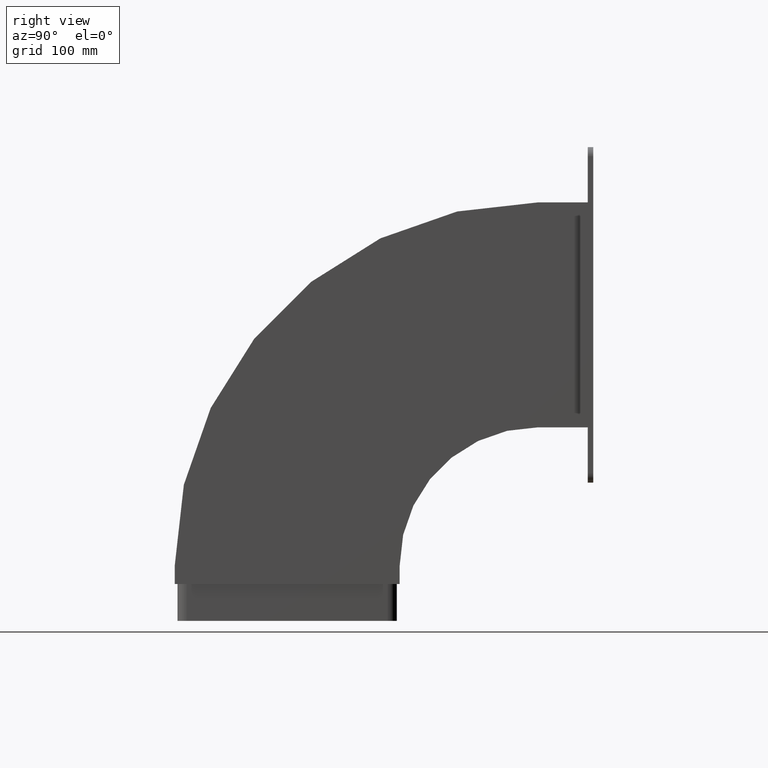
[diagram: clean part render]
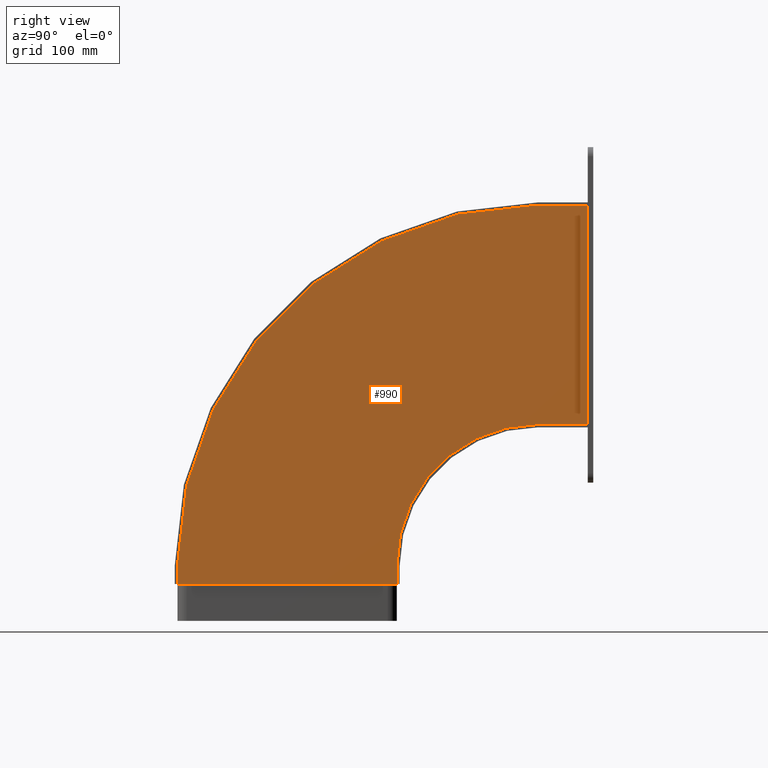
[diagram: same view with one face highlighted and labeled with its STEP entity id]
A machine part, right view. The second image highlights one B-rep face of the part: STEP entity #990.
In plain terms, the highlighted planar face has unit normal (-1, -0, 0).
Its self-contained STEP definition (entity closure, byte-faithful):
#738=CARTESIAN_POINT('',(2.0,-160.000000000000060,-201.000000000000280));
#739=VERTEX_POINT('',#738);
#746=CARTESIAN_POINT('',(2.0,-220.0,-201.000000000000280));
#747=VERTEX_POINT('',#746);
#748=CARTESIAN_POINT('',(2.0,-160.000000000000060,-201.000000000000280));
#749=DIRECTION('',(0.0,-1.0,0.0));
#750=VECTOR('',#749,59.999999999999943);
#751=LINE('',#748,#750);
#752=EDGE_CURVE('',#739,#747,#751,.T.);
#777=CARTESIAN_POINT('',(2.0,231.000000000000060,189.999999999999720));
#778=VERTEX_POINT('',#777);
#785=CARTESIAN_POINT('',(2.0,-160.0,189.999999999999720));
#786=DIRECTION('',(-1.0,0.0,0.0));
#787=DIRECTION('',(0.0,0.0,1.0));
#788=AXIS2_PLACEMENT_3D('',#785,#786,#787);
#789=CIRCLE('',#788,391.0);
#790=EDGE_CURVE('',#778,#739,#789,.T.);
#809=CARTESIAN_POINT('',(2.0,231.000000000000030,210.000000986874400));
#810=VERTEX_POINT('',#809);
#817=CARTESIAN_POINT('',(2.0,231.000000000000030,210.000000986874400));
#818=DIRECTION('',(0.0,0.0,-1.0));
#819=VECTOR('',#818,20.000000986874682);
#820=LINE('',#817,#819);
#821=EDGE_CURVE('',#810,#778,#820,.T.);
#840=CARTESIAN_POINT('',(2.0,-7.0,210.000000986874400));
#841=VERTEX_POINT('',#840);
#848=CARTESIAN_POINT('',(2.0,-7.0,210.000000986874400));
#849=DIRECTION('',(0.0,1.0,0.0));
#850=VECTOR('',#849,238.000000000000030);
#851=LINE('',#848,#850);
#852=EDGE_CURVE('',#841,#810,#851,.T.);
#871=CARTESIAN_POINT('',(2.0,-7.0,189.999999999999720));
#872=VERTEX_POINT('',#871);
#879=CARTESIAN_POINT('',(2.0,-7.0,189.999999999999720));
#880=DIRECTION('',(0.0,0.0,1.0));
#881=VECTOR('',#880,20.000000986874682);
#882=LINE('',#879,#881);
#883=EDGE_CURVE('',#872,#841,#882,.T.);
#903=CARTESIAN_POINT('',(2.0,-160.0,36.999999999999716));
#904=VERTEX_POINT('',#903);
#911=CARTESIAN_POINT('',(2.0,-160.0,189.999999999999720));
#912=DIRECTION('',(1.0,0.0,0.0));
#913=DIRECTION('',(0.0,0.0,1.0));
#914=AXIS2_PLACEMENT_3D('',#911,#912,#913);
#915=CIRCLE('',#914,153.0);
#916=EDGE_CURVE('',#904,#872,#915,.T.);
#935=CARTESIAN_POINT('',(2.0,-220.0,36.999999999999716));
#936=VERTEX_POINT('',#935);
#943=CARTESIAN_POINT('',(2.0,-220.0,36.999999999999716));
#944=DIRECTION('',(0.0,1.0,0.0));
#945=VECTOR('',#944,60.0);
#946=LINE('',#943,#945);
#947=EDGE_CURVE('',#936,#904,#946,.T.);
#965=CARTESIAN_POINT('',(2.0,-220.0,-201.000000000000280));
#966=DIRECTION('',(0.0,0.0,1.0));
#967=VECTOR('',#966,238.0);
#968=LINE('',#965,#967);
#969=EDGE_CURVE('',#747,#936,#968,.T.);
#975=CARTESIAN_POINT('',(2.0,-24.733391103452036,46.733391300826241));
#976=DIRECTION('',(-1.0,0.0,0.0));
#977=DIRECTION('',(0.0,0.0,1.0));
#978=AXIS2_PLACEMENT_3D('',#975,#976,#977);
#979=PLANE('',#978);
#980=ORIENTED_EDGE('',*,*,#969,.F.);
#981=ORIENTED_EDGE('',*,*,#752,.F.);
#982=ORIENTED_EDGE('',*,*,#790,.F.);
#983=ORIENTED_EDGE('',*,*,#821,.F.);
#984=ORIENTED_EDGE('',*,*,#852,.F.);
#985=ORIENTED_EDGE('',*,*,#883,.F.);
#986=ORIENTED_EDGE('',*,*,#916,.F.);
#987=ORIENTED_EDGE('',*,*,#947,.F.);
#988=EDGE_LOOP('',(#980,#981,#982,#983,#984,#985,#986,#987));
#989=FACE_OUTER_BOUND('',#988,.T.);
#990=ADVANCED_FACE('',(#989),#979,.F.);